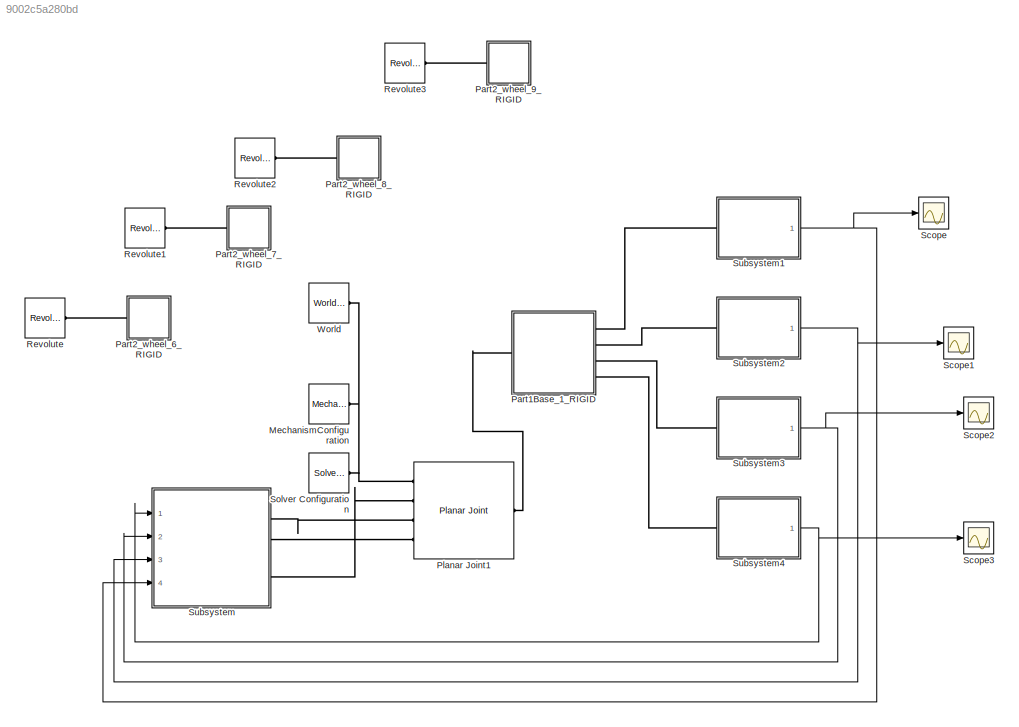
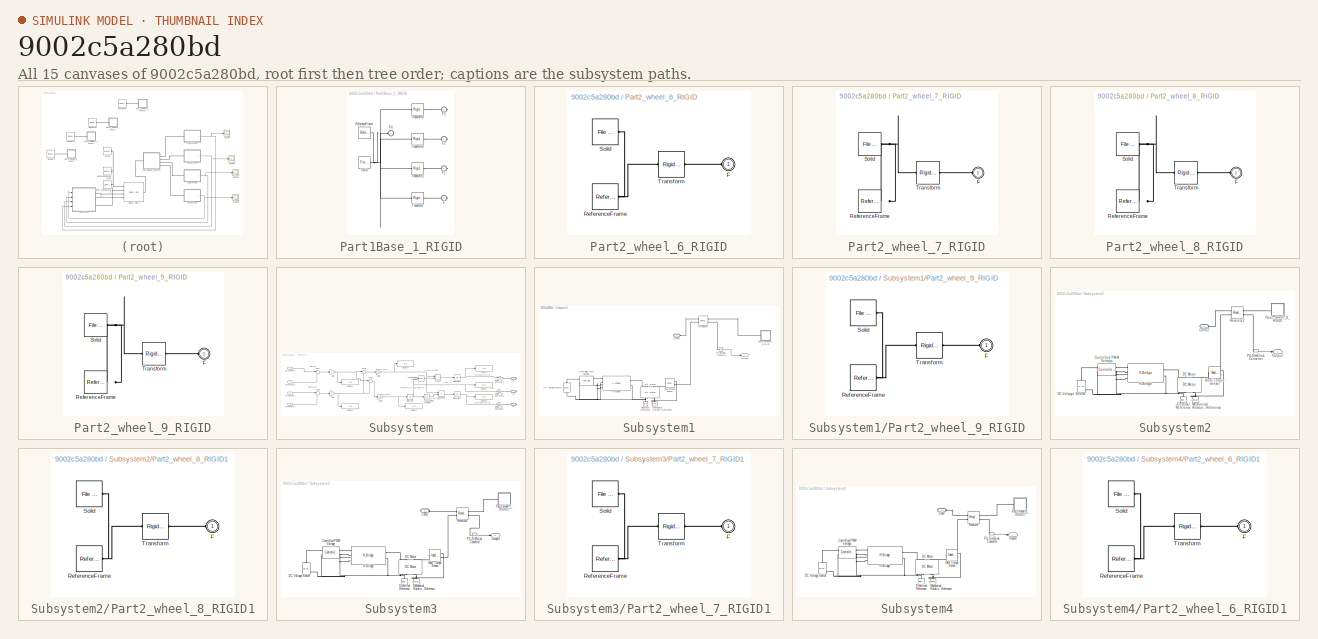
[diagram: thumbnail index - all 15 canvases of the model, root first then tree order]
MODEL slx_9002c5a280bd
KIND model
CONFIG AbsTol = auto
CONFIG EnableMultiTasking = off
CONFIG FixedStep = auto
CONFIG MaxStep = auto
CONFIG MinStep = auto
CONFIG RelTol = 1e-3
CONFIG SampleTimeConstraint = Unconstrained
CONFIG Solver = VariableStepAuto
CONFIG SolverName = VariableStepAuto
CONFIG StartTime = 0.0
CONFIG StopTime = 10.0
WORKSPACE source: external: MATLAB File  (data not in archive)
BLOCK [Reference] MechanismConfiguration  REF=sm_lib/Utilities/Mechanism
Configuration
  Ports = [0, 0, 0, 0, 0, 0, 1]
  SourceBlock = sm_lib/Utilities/Mechanism\nConfiguration
  SourceProductBaseCode = MS
  SourceProductName = Simscape Multibody
  SourceType = Mechanism\nConfiguration
BLOCK [SubSystem] Part1Base_1_RIGID
  Ports = [0, 0, 0, 0, 0, 1, 4]
  RequestExecContextInheritance = off
BLOCK [PMIOPort] Part1Base_1_RIGID/F
  Port = 5
  Side = Right
BLOCK [PMIOPort] Part1Base_1_RIGID/F1
  Port = 4
  Side = Right
BLOCK [PMIOPort] Part1Base_1_RIGID/F2
  Port = 3
  Side = Right
BLOCK [PMIOPort] Part1Base_1_RIGID/F3
  Port = 2
  Side = Right
BLOCK [PMIOPort] Part1Base_1_RIGID/F4
  Side = Left
BLOCK [Reference] Part1Base_1_RIGID/ReferenceFrame  REF=sm_lib/Frames and
Transforms/Reference
Frame
  Ports = [0, 0, 0, 0, 0, 0, 1]
  SourceBlock = sm_lib/Frames and\nTransforms/Reference\nFrame
  SourceProductBaseCode = MS
  SourceProductName = Simscape Multibody
  SourceType = Reference\nFrame
BLOCK [Reference] Part1Base_1_RIGID/Solid  REF=sm_lib/Body Elements/File Solid
  Ports = [0, 0, 0, 0, 0, 0, 1]
  SourceBlock = sm_lib/Body Elements/File Solid
  SourceProductBaseCode = MS
  SourceProductName = Simscape Multibody
  SourceType = File Solid
BLOCK [Reference] Part1Base_1_RIGID/Transform  REF=sm_lib/Frames and
Transforms/Rigid
Transform
  Ports = [0, 0, 0, 0, 0, 1, 1]
  SourceBlock = sm_lib/Frames and\nTransforms/Rigid\nTransform
  SourceProductBaseCode = MS
  SourceProductName = Simscape Multibody
  SourceType = Rigid\nTransform
BLOCK [Reference] Part1Base_1_RIGID/Transform1  REF=sm_lib/Frames and
Transforms/Rigid
Transform
  Ports = [0, 0, 0, 0, 0, 1, 1]
  SourceBlock = sm_lib/Frames and\nTransforms/Rigid\nTransform
  SourceProductBaseCode = MS
  SourceProductName = Simscape Multibody
  SourceType = Rigid\nTransform
BLOCK [Reference] Part1Base_1_RIGID/Transform2  REF=sm_lib/Frames and
Transforms/Rigid
Transform
  Ports = [0, 0, 0, 0, 0, 1, 1]
  SourceBlock = sm_lib/Frames and\nTransforms/Rigid\nTransform
  SourceProductBaseCode = MS
  SourceProductName = Simscape Multibody
  SourceType = Rigid\nTransform
BLOCK [Reference] Part1Base_1_RIGID/Transform3  REF=sm_lib/Frames and
Transforms/Rigid
Transform
  Ports = [0, 0, 0, 0, 0, 1, 1]
  SourceBlock = sm_lib/Frames and\nTransforms/Rigid\nTransform
  SourceProductBaseCode = MS
  SourceProductName = Simscape Multibody
  SourceType = Rigid\nTransform
BLOCK [SubSystem] Part2_wheel_6_RIGID
  Commented = on
  Ports = [0, 0, 0, 0, 0, 1]
  RequestExecContextInheritance = off
BLOCK [PMIOPort] Part2_wheel_6_RIGID/F
  Side = Left
BLOCK [Reference] Part2_wheel_6_RIGID/ReferenceFrame  REF=sm_lib/Frames and
Transforms/Reference
Frame
  Ports = [0, 0, 0, 0, 0, 0, 1]
  SourceBlock = sm_lib/Frames and\nTransforms/Reference\nFrame
  SourceProductBaseCode = MS
  SourceProductName = Simscape Multibody
  SourceType = Reference\nFrame
BLOCK [Reference] Part2_wheel_6_RIGID/Solid  REF=sm_lib/Body Elements/File Solid
  Ports = [0, 0, 0, 0, 0, 0, 1]
  SourceBlock = sm_lib/Body Elements/File Solid
  SourceProductBaseCode = MS
  SourceProductName = Simscape Multibody
  SourceType = File Solid
BLOCK [Reference] Part2_wheel_6_RIGID/Transform  REF=sm_lib/Frames and
Transforms/Rigid
Transform
  Ports = [0, 0, 0, 0, 0, 1, 1]
  SourceBlock = sm_lib/Frames and\nTransforms/Rigid\nTransform
  SourceProductBaseCode = MS
  SourceProductName = Simscape Multibody
  SourceType = Rigid\nTransform
BLOCK [SubSystem] Part2_wheel_7_RIGID
  Commented = on
  Ports = [0, 0, 0, 0, 0, 1]
  RequestExecContextInheritance = off
BLOCK [PMIOPort] Part2_wheel_7_RIGID/F
  Side = Left
BLOCK [Reference] Part2_wheel_7_RIGID/ReferenceFrame  REF=sm_lib/Frames and
Transforms/Reference
Frame
  Ports = [0, 0, 0, 0, 0, 0, 1]
  SourceBlock = sm_lib/Frames and\nTransforms/Reference\nFrame
  SourceProductBaseCode = MS
  SourceProductName = Simscape Multibody
  SourceType = Reference\nFrame
BLOCK [Reference] Part2_wheel_7_RIGID/Solid  REF=sm_lib/Body Elements/File Solid
  Ports = [0, 0, 0, 0, 0, 0, 1]
  SourceBlock = sm_lib/Body Elements/File Solid
  SourceProductBaseCode = MS
  SourceProductName = Simscape Multibody
  SourceType = File Solid
BLOCK [Reference] Part2_wheel_7_RIGID/Transform  REF=sm_lib/Frames and
Transforms/Rigid
Transform
  Ports = [0, 0, 0, 0, 0, 1, 1]
  SourceBlock = sm_lib/Frames and\nTransforms/Rigid\nTransform
  SourceProductBaseCode = MS
  SourceProductName = Simscape Multibody
  SourceType = Rigid\nTransform
BLOCK [SubSystem] Part2_wheel_8_RIGID
  Commented = on
  Ports = [0, 0, 0, 0, 0, 1]
  RequestExecContextInheritance = off
BLOCK [PMIOPort] Part2_wheel_8_RIGID/F
  Side = Left
BLOCK [Reference] Part2_wheel_8_RIGID/ReferenceFrame  REF=sm_lib/Frames and
Transforms/Reference
Frame
  Ports = [0, 0, 0, 0, 0, 0, 1]
  SourceBlock = sm_lib/Frames and\nTransforms/Reference\nFrame
  SourceProductBaseCode = MS
  SourceProductName = Simscape Multibody
  SourceType = Reference\nFrame
BLOCK [Reference] Part2_wheel_8_RIGID/Solid  REF=sm_lib/Body Elements/File Solid
  Ports = [0, 0, 0, 0, 0, 0, 1]
  SourceBlock = sm_lib/Body Elements/File Solid
  SourceProductBaseCode = MS
  SourceProductName = Simscape Multibody
  SourceType = File Solid
BLOCK [Reference] Part2_wheel_8_RIGID/Transform  REF=sm_lib/Frames and
Transforms/Rigid
Transform
  Ports = [0, 0, 0, 0, 0, 1, 1]
  SourceBlock = sm_lib/Frames and\nTransforms/Rigid\nTransform
  SourceProductBaseCode = MS
  SourceProductName = Simscape Multibody
  SourceType = Rigid\nTransform
BLOCK [SubSystem] Part2_wheel_9_RIGID
  Commented = on
  Ports = [0, 0, 0, 0, 0, 1]
  RequestExecContextInheritance = off
BLOCK [PMIOPort] Part2_wheel_9_RIGID/F
  Side = Left
BLOCK [Reference] Part2_wheel_9_RIGID/ReferenceFrame  REF=sm_lib/Frames and
Transforms/Reference
Frame
  Ports = [0, 0, 0, 0, 0, 0, 1]
  SourceBlock = sm_lib/Frames and\nTransforms/Reference\nFrame
  SourceProductBaseCode = MS
  SourceProductName = Simscape Multibody
  SourceType = Reference\nFrame
BLOCK [Reference] Part2_wheel_9_RIGID/Solid  REF=sm_lib/Body Elements/File Solid
  Ports = [0, 0, 0, 0, 0, 0, 1]
  SourceBlock = sm_lib/Body Elements/File Solid
  SourceProductBaseCode = MS
  SourceProductName = Simscape Multibody
  SourceType = File Solid
BLOCK [Reference] Part2_wheel_9_RIGID/Transform  REF=sm_lib/Frames and
Transforms/Rigid
Transform
  Ports = [0, 0, 0, 0, 0, 1, 1]
  SourceBlock = sm_lib/Frames and\nTransforms/Rigid\nTransform
  SourceProductBaseCode = MS
  SourceProductName = Simscape Multibody
  SourceType = Rigid\nTransform
BLOCK [Reference] Planar Joint1  REF=sm_lib/Joints/Planar Joint
  Ports = [0, 0, 0, 0, 0, 4, 1]
  SourceBlock = sm_lib/Joints/Planar Joint
  SourceProductBaseCode = MS
  SourceProductName = Simscape Multibody
  SourceType = Planar Joint
BLOCK [Reference] Revolute  REF=sm_lib/Joints/Revolute Joint
  Commented = on
  Ports = [0, 0, 0, 0, 0, 1, 1]
  SourceBlock = sm_lib/Joints/Revolute Joint
  SourceProductBaseCode = MS
  SourceProductName = Simscape Multibody
  SourceType = Revolute Joint
BLOCK [Reference] Revolute1  REF=sm_lib/Joints/Revolute Joint
  Commented = on
  Ports = [0, 0, 0, 0, 0, 1, 1]
  SourceBlock = sm_lib/Joints/Revolute Joint
  SourceProductBaseCode = MS
  SourceProductName = Simscape Multibody
  SourceType = Revolute Joint
BLOCK [Reference] Revolute2  REF=sm_lib/Joints/Revolute Joint
  Commented = on
  Ports = [0, 0, 0, 0, 0, 1, 1]
  SourceBlock = sm_lib/Joints/Revolute Joint
  SourceProductBaseCode = MS
  SourceProductName = Simscape Multibody
  SourceType = Revolute Joint
BLOCK [Reference] Revolute3  REF=sm_lib/Joints/Revolute Joint
  Commented = on
  Ports = [0, 0, 0, 0, 0, 1, 1]
  SourceBlock = sm_lib/Joints/Revolute Joint
  SourceProductBaseCode = MS
  SourceProductName = Simscape Multibody
  SourceType = Revolute Joint
BLOCK [Scope] Scope
  Floating = off
  NumInputPorts = 1
  Ports = [1]
  ScopeSpecificationString = Simulink.scopes.TimeScopeBlockCfg('CurrentConfiguration', extmgr.ConfigurationSet(extmgr.Configuration('Core','General UI',true),extmgr.Configuration('Core','Source UI',true),extmgr.Configuration('Sources','WiredSimulink',true,'DataLoggingSaveFormat','Array','DataLoggingLimitDataPoints',true,'DataLoggingDecimation','1'),extmgr.Configuration('Visuals','Time Domain',true,'SerializedDisplays',{struct...<+3718ch>
BLOCK [Scope] Scope1
  Floating = off
  NumInputPorts = 1
  Ports = [1]
  ScopeSpecificationString = Simulink.scopes.TimeScopeBlockCfg('CurrentConfiguration', extmgr.ConfigurationSet(extmgr.Configuration('Core','General UI',true),extmgr.Configuration('Core','Source UI',true),extmgr.Configuration('Sources','WiredSimulink',true,'DataLoggingVariableName','ScopeData1','DataLoggingSaveFormat','Array','DataLoggingLimitDataPoints',true,'DataLoggingDecimation','1'),extmgr.Configuration('Visuals','Time Do...<+868ch>
BLOCK [Scope] Scope2
  Floating = off
  NumInputPorts = 1
  Ports = [1]
  ScopeSpecificationString = Simulink.scopes.TimeScopeBlockCfg('CurrentConfiguration', extmgr.ConfigurationSet(extmgr.Configuration('Core','General UI',true),extmgr.Configuration('Core','Source UI',true),extmgr.Configuration('Sources','WiredSimulink',true,'DataLoggingVariableName','ScopeData2','DataLoggingSaveFormat','Array','DataLoggingLimitDataPoints',true,'DataLoggingDecimation','1'),extmgr.Configuration('Visuals','Time Do...<+868ch>
BLOCK [Scope] Scope3
  Floating = off
  NumInputPorts = 1
  Ports = [1]
  ScopeSpecificationString = Simulink.scopes.TimeScopeBlockCfg('CurrentConfiguration', extmgr.ConfigurationSet(extmgr.Configuration('Core','General UI',true),extmgr.Configuration('Core','Source UI',true),extmgr.Configuration('Sources','WiredSimulink',true,'DataLoggingVariableName','ScopeData3','DataLoggingSaveFormat','Array','DataLoggingLimitDataPoints',true,'DataLoggingDecimation','1'),extmgr.Configuration('Visuals','Time Do...<+1775ch>
BLOCK [Reference] Solver Configuration  REF=nesl_utility/Solver
Configuration
  Ports = [0, 0, 0, 0, 0, 0, 1]
  SourceBlock = nesl_utility/Solver\nConfiguration
  SourceProductBaseCode = SS
  SourceProductName = Simscape
  SourceType = Solver\nConfiguration
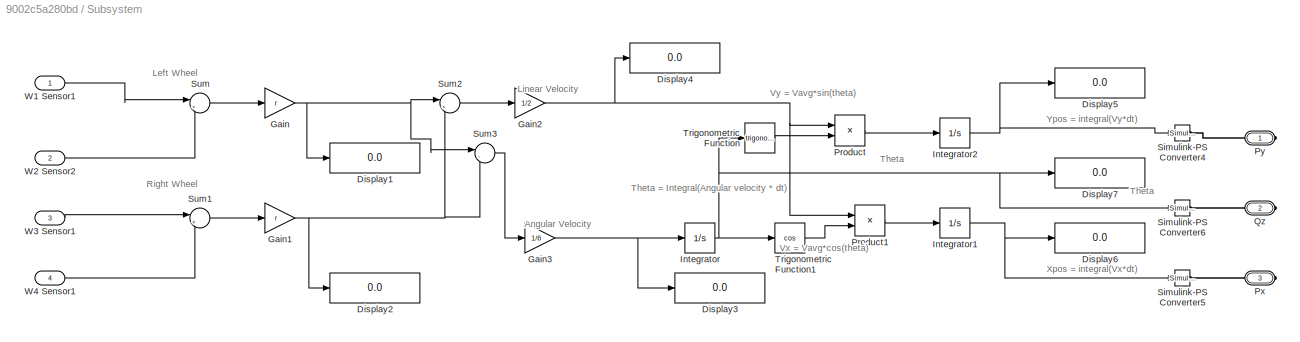
BLOCK [SubSystem] Subsystem
  Ports = [4, 0, 0, 0, 0, 0, 3]
  RequestExecContextInheritance = off
BLOCK [Display] Subsystem/Display1
  Decimation = 1
  Ports = [1]
BLOCK [Display] Subsystem/Display2
  Decimation = 1
  Ports = [1]
BLOCK [Display] Subsystem/Display3
  Decimation = 1
  Ports = [1]
BLOCK [Display] Subsystem/Display4
  Decimation = 1
  Ports = [1]
BLOCK [Display] Subsystem/Display5
  Decimation = 1
  Ports = [1]
BLOCK [Display] Subsystem/Display6
  Decimation = 1
  Ports = [1]
BLOCK [Display] Subsystem/Display7
  Decimation = 1
  Ports = [1]
BLOCK [Gain] Subsystem/Gain
  Gain = r
  OutDataTypeStr = Inherit: Inherit via internal rule
  ParamDataTypeStr = Inherit: Inherit via internal rule
  SaturateOnIntegerOverflow = off
BLOCK [Gain] Subsystem/Gain1
  Gain = r
  OutDataTypeStr = Inherit: Inherit via internal rule
  ParamDataTypeStr = Inherit: Inherit via internal rule
  SaturateOnIntegerOverflow = off
BLOCK [Gain] Subsystem/Gain2
  Gain = 1/2
  OutDataTypeStr = Inherit: Inherit via internal rule
  ParamDataTypeStr = Inherit: Inherit via internal rule
  SaturateOnIntegerOverflow = off
BLOCK [Gain] Subsystem/Gain3
  Gain = 1/6
  OutDataTypeStr = Inherit: Inherit via internal rule
  ParamDataTypeStr = Inherit: Inherit via internal rule
  SaturateOnIntegerOverflow = off
BLOCK [Integrator] Subsystem/Integrator
  Ports = [1, 1]
BLOCK [Integrator] Subsystem/Integrator1
  Ports = [1, 1]
BLOCK [Integrator] Subsystem/Integrator2
  Ports = [1, 1]
BLOCK [Product] Subsystem/Product
  InputSameDT = off
  OutDataTypeStr = Inherit: Inherit via internal rule
  Ports = [2, 1]
  RndMeth = Floor
  SaturateOnIntegerOverflow = off
BLOCK [Product] Subsystem/Product1
  InputSameDT = off
  OutDataTypeStr = Inherit: Inherit via internal rule
  Ports = [2, 1]
  RndMeth = Floor
  SaturateOnIntegerOverflow = off
BLOCK [PMIOPort] Subsystem/Px
  Port = 3
  Side = Right
BLOCK [PMIOPort] Subsystem/Py
  Side = Right
BLOCK [PMIOPort] Subsystem/Qz
  Port = 2
  Side = Right
BLOCK [Reference] Subsystem/Simulink-PS Converter4  REF=nesl_utility/Simulink-PS
Converter
  Ports = [1, 0, 0, 0, 0, 0, 1]
  SourceBlock = nesl_utility/Simulink-PS\nConverter
  SourceProductBaseCode = SS
  SourceProductName = Simscape
  SourceType = Simulink-PS\nConverter
BLOCK [Reference] Subsystem/Simulink-PS Converter5  REF=nesl_utility/Simulink-PS
Converter
  Ports = [1, 0, 0, 0, 0, 0, 1]
  SourceBlock = nesl_utility/Simulink-PS\nConverter
  SourceProductBaseCode = SS
  SourceProductName = Simscape
  SourceType = Simulink-PS\nConverter
BLOCK [Reference] Subsystem/Simulink-PS Converter6  REF=nesl_utility/Simulink-PS
Converter
  Ports = [1, 0, 0, 0, 0, 0, 1]
  SourceBlock = nesl_utility/Simulink-PS\nConverter
  SourceProductBaseCode = SS
  SourceProductName = Simscape
  SourceType = Simulink-PS\nConverter
BLOCK [Sum] Subsystem/Sum
  IconShape = round
  InputSameDT = off
  Inputs = |++
  OutDataTypeStr = Inherit: Inherit via internal rule
  Ports = [2, 1]
  SaturateOnIntegerOverflow = off
BLOCK [Sum] Subsystem/Sum1
  IconShape = round
  InputSameDT = off
  Inputs = |++
  OutDataTypeStr = Inherit: Inherit via internal rule
  Ports = [2, 1]
  SaturateOnIntegerOverflow = off
BLOCK [Sum] Subsystem/Sum2
  IconShape = round
  InputSameDT = off
  Inputs = |++
  OutDataTypeStr = Inherit: Inherit via internal rule
  Ports = [2, 1]
  SaturateOnIntegerOverflow = off
BLOCK [Sum] Subsystem/Sum3
  IconShape = round
  InputSameDT = off
  Inputs = |-+
  OutDataTypeStr = Inherit: Inherit via internal rule
  Ports = [2, 1]
  SaturateOnIntegerOverflow = off
BLOCK [Trigonometry] Subsystem/Trigonometric Function
  Ports = [1, 1]
BLOCK [Trigonometry] Subsystem/Trigonometric Function1
  Operator = cos
  Ports = [1, 1]
BLOCK [Inport] Subsystem/W1 Sensor1
  IconDisplay = Port number
BLOCK [Inport] Subsystem/W2 Sensor2
  IconDisplay = Port number
  Port = 2
BLOCK [Inport] Subsystem/W3 Sensor1
  IconDisplay = Port number
  Port = 3
BLOCK [Inport] Subsystem/W4 Sensor1
  IconDisplay = Port number
  Port = 4
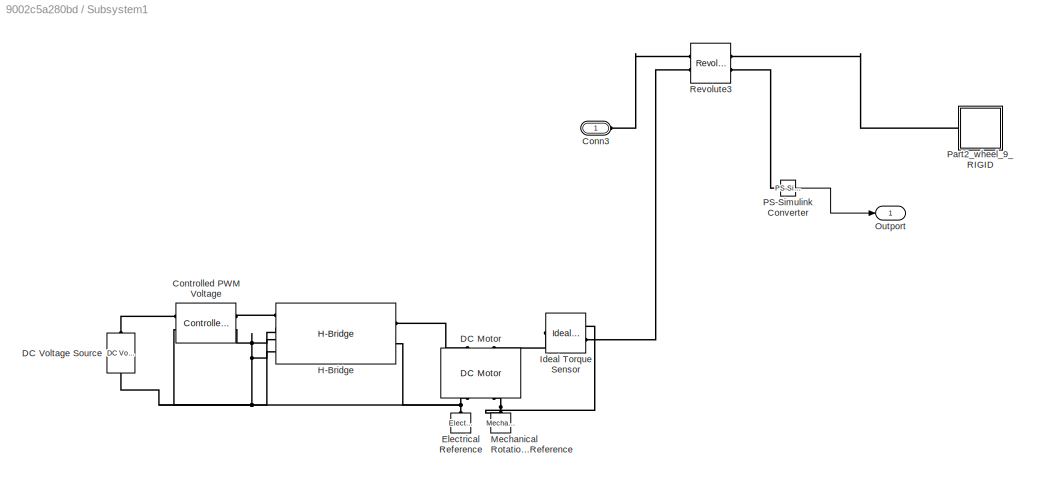
BLOCK [SubSystem] Subsystem1
  Ports = [0, 1, 0, 0, 0, 1]
  RequestExecContextInheritance = off
BLOCK [PMIOPort] Subsystem1/Conn3
  Side = Left
BLOCK [Reference] Subsystem1/Controlled PWM Voltage  REF=ee_lib/Integrated Circuits/Controlled PWM
Voltage
  Ports = [0, 0, 0, 0, 0, 2, 2]
  SourceBlock = ee_lib/Integrated Circuits/Controlled PWM\nVoltage
  SourceProductBaseCode = PS
  SourceProductName = Simscape Electrical
  SourceType = Controlled PWM\nVoltage
BLOCK [Reference] Subsystem1/DC Motor  REF=ee_lib/Electromechanical/Brushed Motors/DC Motor
  Ports = [0, 0, 0, 0, 0, 2, 2]
  SourceBlock = ee_lib/Electromechanical/Brushed Motors/DC Motor
  SourceProductBaseCode = PS
  SourceProductName = Simscape Electrical
  SourceType = DC Motor
BLOCK [Reference] Subsystem1/DC Voltage Source  REF=fl_lib/Electrical/Electrical Sources/DC Voltage Source
  Ports = [0, 0, 0, 0, 0, 1, 1]
  SourceBlock = fl_lib/Electrical/Electrical Sources/DC Voltage Source
  SourceProductBaseCode = SS
  SourceProductName = Simscape
  SourceType = DC Voltage Source
BLOCK [Reference] Subsystem1/Electrical Reference  REF=fl_lib/Electrical/Electrical Elements/Electrical Reference
  Ports = [0, 0, 0, 0, 0, 1]
  SourceBlock = fl_lib/Electrical/Electrical Elements/Electrical Reference
  SourceProductBaseCode = SS
  SourceProductName = Simscape
  SourceType = Electrical Reference
BLOCK [Reference] Subsystem1/H-Bridge  REF=ee_lib/Semiconductors &
Converters/Converters/H-Bridge
  Ports = [0, 0, 0, 0, 0, 4, 2]
  SourceBlock = ee_lib/Semiconductors &\nConverters/Converters/H-Bridge
  SourceProductBaseCode = PS
  SourceProductName = Simscape Electrical
  SourceType = H-Bridge
BLOCK [Reference] Subsystem1/Ideal Torque Sensor  REF=fl_lib/Mechanical/Mechanical Sensors/Ideal Torque Sensor
  Ports = [0, 0, 0, 0, 0, 1, 2]
  SourceBlock = fl_lib/Mechanical/Mechanical Sensors/Ideal Torque Sensor
  SourceProductBaseCode = SS
  SourceProductName = Simscape
  SourceType = Ideal Torque Sensor
BLOCK [Reference] Subsystem1/Mechanical Rotational Reference  REF=fl_lib/Mechanical/Rotational Elements/Mechanical
Rotational Reference
  Ports = [0, 0, 0, 0, 0, 1]
  SourceBlock = fl_lib/Mechanical/Rotational Elements/Mechanical\nRotational Reference
  SourceProductBaseCode = SS
  SourceProductName = Simscape
  SourceType = Mechanical\nRotational Reference
BLOCK [Outport] Subsystem1/Outport
  IconDisplay = Port number
BLOCK [Reference] Subsystem1/PS-Simulink Converter  REF=nesl_utility/PS-Simulink
Converter
  Ports = [0, 1, 0, 0, 0, 1]
  SourceBlock = nesl_utility/PS-Simulink\nConverter
  SourceProductBaseCode = SS
  SourceProductName = Simscape
  SourceType = PS-Simulink\nConverter
BLOCK [SubSystem] Subsystem1/Part2_wheel_9_RIGID
  Ports = [0, 0, 0, 0, 0, 1]
  RequestExecContextInheritance = off
BLOCK [PMIOPort] Subsystem1/Part2_wheel_9_RIGID/F
  Side = Left
BLOCK [Reference] Subsystem1/Part2_wheel_9_RIGID/ReferenceFrame  REF=sm_lib/Frames and
Transforms/Reference
Frame
  Ports = [0, 0, 0, 0, 0, 0, 1]
  SourceBlock = sm_lib/Frames and\nTransforms/Reference\nFrame
  SourceProductBaseCode = MS
  SourceProductName = Simscape Multibody
  SourceType = Reference\nFrame
BLOCK [Reference] Subsystem1/Part2_wheel_9_RIGID/Solid  REF=sm_lib/Body Elements/File Solid
  Ports = [0, 0, 0, 0, 0, 0, 1]
  SourceBlock = sm_lib/Body Elements/File Solid
  SourceProductBaseCode = MS
  SourceProductName = Simscape Multibody
  SourceType = File Solid
BLOCK [Reference] Subsystem1/Part2_wheel_9_RIGID/Transform  REF=sm_lib/Frames and
Transforms/Rigid
Transform
  Ports = [0, 0, 0, 0, 0, 1, 1]
  SourceBlock = sm_lib/Frames and\nTransforms/Rigid\nTransform
  SourceProductBaseCode = MS
  SourceProductName = Simscape Multibody
  SourceType = Rigid\nTransform
BLOCK [Reference] Subsystem1/Revolute3  REF=sm_lib/Joints/Revolute Joint
  Ports = [0, 0, 0, 0, 0, 2, 2]
  SourceBlock = sm_lib/Joints/Revolute Joint
  SourceProductBaseCode = MS
  SourceProductName = Simscape Multibody
  SourceType = Revolute Joint
BLOCK [SubSystem] Subsystem2
  Ports = [0, 1, 0, 0, 0, 1]
  RequestExecContextInheritance = off
BLOCK [PMIOPort] Subsystem2/Conn2
  Side = Left
BLOCK [Reference] Subsystem2/Controlled PWM Voltage  REF=ee_lib/Integrated Circuits/Controlled PWM
Voltage
  Ports = [0, 0, 0, 0, 0, 2, 2]
  SourceBlock = ee_lib/Integrated Circuits/Controlled PWM\nVoltage
  SourceProductBaseCode = PS
  SourceProductName = Simscape Electrical
  SourceType = Controlled PWM\nVoltage
BLOCK [Reference] Subsystem2/DC Motor  REF=ee_lib/Electromechanical/Brushed Motors/DC Motor
  Ports = [0, 0, 0, 0, 0, 2, 2]
  SourceBlock = ee_lib/Electromechanical/Brushed Motors/DC Motor
  SourceProductBaseCode = PS
  SourceProductName = Simscape Electrical
  SourceType = DC Motor
BLOCK [Reference] Subsystem2/DC Voltage Source  REF=fl_lib/Electrical/Electrical Sources/DC Voltage Source
  Ports = [0, 0, 0, 0, 0, 1, 1]
  SourceBlock = fl_lib/Electrical/Electrical Sources/DC Voltage Source
  SourceProductBaseCode = SS
  SourceProductName = Simscape
  SourceType = DC Voltage Source
BLOCK [Reference] Subsystem2/Electrical Reference  REF=fl_lib/Electrical/Electrical Elements/Electrical Reference
  Ports = [0, 0, 0, 0, 0, 1]
  SourceBlock = fl_lib/Electrical/Electrical Elements/Electrical Reference
  SourceProductBaseCode = SS
  SourceProductName = Simscape
  SourceType = Electrical Reference
BLOCK [Reference] Subsystem2/H-Bridge  REF=ee_lib/Semiconductors &
Converters/Converters/H-Bridge
  Ports = [0, 0, 0, 0, 0, 4, 2]
  SourceBlock = ee_lib/Semiconductors &\nConverters/Converters/H-Bridge
  SourceProductBaseCode = PS
  SourceProductName = Simscape Electrical
  SourceType = H-Bridge
BLOCK [Reference] Subsystem2/Ideal Torque Sensor  REF=fl_lib/Mechanical/Mechanical Sensors/Ideal Torque Sensor
  Ports = [0, 0, 0, 0, 0, 1, 2]
  SourceBlock = fl_lib/Mechanical/Mechanical Sensors/Ideal Torque Sensor
  SourceProductBaseCode = SS
  SourceProductName = Simscape
  SourceType = Ideal Torque Sensor
BLOCK [Reference] Subsystem2/Mechanical Rotational Reference  REF=fl_lib/Mechanical/Rotational Elements/Mechanical
Rotational Reference
  Ports = [0, 0, 0, 0, 0, 1]
  SourceBlock = fl_lib/Mechanical/Rotational Elements/Mechanical\nRotational Reference
  SourceProductBaseCode = SS
  SourceProductName = Simscape
  SourceType = Mechanical\nRotational Reference
BLOCK [Outport] Subsystem2/Outport
  IconDisplay = Port number
BLOCK [Reference] Subsystem2/PS-Simulink Converter  REF=nesl_utility/PS-Simulink
Converter
  Ports = [0, 1, 0, 0, 0, 1]
  SourceBlock = nesl_utility/PS-Simulink\nConverter
  SourceProductBaseCode = SS
  SourceProductName = Simscape
  SourceType = PS-Simulink\nConverter
BLOCK [SubSystem] Subsystem2/Part2_wheel_8_RIGID1
  Ports = [0, 0, 0, 0, 0, 1]
  RequestExecContextInheritance = off
BLOCK [PMIOPort] Subsystem2/Part2_wheel_8_RIGID1/F
  Side = Left
BLOCK [Reference] Subsystem2/Part2_wheel_8_RIGID1/ReferenceFrame  REF=sm_lib/Frames and
Transforms/Reference
Frame
  Ports = [0, 0, 0, 0, 0, 0, 1]
  SourceBlock = sm_lib/Frames and\nTransforms/Reference\nFrame
  SourceProductBaseCode = MS
  SourceProductName = Simscape Multibody
  SourceType = Reference\nFrame
BLOCK [Reference] Subsystem2/Part2_wheel_8_RIGID1/Solid  REF=sm_lib/Body Elements/File Solid
  Ports = [0, 0, 0, 0, 0, 0, 1]
  SourceBlock = sm_lib/Body Elements/File Solid
  SourceProductBaseCode = MS
  SourceProductName = Simscape Multibody
  SourceType = File Solid
BLOCK [Reference] Subsystem2/Part2_wheel_8_RIGID1/Transform  REF=sm_lib/Frames and
Transforms/Rigid
Transform
  Ports = [0, 0, 0, 0, 0, 1, 1]
  SourceBlock = sm_lib/Frames and\nTransforms/Rigid\nTransform
  SourceProductBaseCode = MS
  SourceProductName = Simscape Multibody
  SourceType = Rigid\nTransform
BLOCK [Reference] Subsystem2/Revolute2  REF=sm_lib/Joints/Revolute Joint
  Ports = [0, 0, 0, 0, 0, 2, 2]
  SourceBlock = sm_lib/Joints/Revolute Joint
  SourceProductBaseCode = MS
  SourceProductName = Simscape Multibody
  SourceType = Revolute Joint
BLOCK [SubSystem] Subsystem3
  Ports = [0, 1, 0, 0, 0, 1]
  RequestExecContextInheritance = off
BLOCK [PMIOPort] Subsystem3/Conn1
  Side = Left
BLOCK [Reference] Subsystem3/Controlled PWM Voltage  REF=ee_lib/Integrated Circuits/Controlled PWM
Voltage
  Ports = [0, 0, 0, 0, 0, 2, 2]
  SourceBlock = ee_lib/Integrated Circuits/Controlled PWM\nVoltage
  SourceProductBaseCode = PS
  SourceProductName = Simscape Electrical
  SourceType = Controlled PWM\nVoltage
BLOCK [Reference] Subsystem3/DC Motor  REF=ee_lib/Electromechanical/Brushed Motors/DC Motor
  Ports = [0, 0, 0, 0, 0, 2, 2]
  SourceBlock = ee_lib/Electromechanical/Brushed Motors/DC Motor
  SourceProductBaseCode = PS
  SourceProductName = Simscape Electrical
  SourceType = DC Motor
BLOCK [Reference] Subsystem3/DC Voltage Source  REF=fl_lib/Electrical/Electrical Sources/DC Voltage Source
  Ports = [0, 0, 0, 0, 0, 1, 1]
  SourceBlock = fl_lib/Electrical/Electrical Sources/DC Voltage Source
  SourceProductBaseCode = SS
  SourceProductName = Simscape
  SourceType = DC Voltage Source
BLOCK [Reference] Subsystem3/Electrical Reference  REF=fl_lib/Electrical/Electrical Elements/Electrical Reference
  Ports = [0, 0, 0, 0, 0, 1]
  SourceBlock = fl_lib/Electrical/Electrical Elements/Electrical Reference
  SourceProductBaseCode = SS
  SourceProductName = Simscape
  SourceType = Electrical Reference
BLOCK [Reference] Subsystem3/H-Bridge  REF=ee_lib/Semiconductors &
Converters/Converters/H-Bridge
  Ports = [0, 0, 0, 0, 0, 4, 2]
  SourceBlock = ee_lib/Semiconductors &\nConverters/Converters/H-Bridge
  SourceProductBaseCode = PS
  SourceProductName = Simscape Electrical
  SourceType = H-Bridge
BLOCK [Reference] Subsystem3/Ideal Torque Sensor  REF=fl_lib/Mechanical/Mechanical Sensors/Ideal Torque Sensor
  Ports = [0, 0, 0, 0, 0, 1, 2]
  SourceBlock = fl_lib/Mechanical/Mechanical Sensors/Ideal Torque Sensor
  SourceProductBaseCode = SS
  SourceProductName = Simscape
  SourceType = Ideal Torque Sensor
BLOCK [Reference] Subsystem3/Mechanical Rotational Reference  REF=fl_lib/Mechanical/Rotational Elements/Mechanical
Rotational Reference
  Ports = [0, 0, 0, 0, 0, 1]
  SourceBlock = fl_lib/Mechanical/Rotational Elements/Mechanical\nRotational Reference
  SourceProductBaseCode = SS
  SourceProductName = Simscape
  SourceType = Mechanical\nRotational Reference
BLOCK [Outport] Subsystem3/Outport
  IconDisplay = Port number
BLOCK [Reference] Subsystem3/PS-Simulink Converter  REF=nesl_utility/PS-Simulink
Converter
  Ports = [0, 1, 0, 0, 0, 1]
  SourceBlock = nesl_utility/PS-Simulink\nConverter
  SourceProductBaseCode = SS
  SourceProductName = Simscape
  SourceType = PS-Simulink\nConverter
BLOCK [SubSystem] Subsystem3/Part2_wheel_7_RIGID1
  Ports = [0, 0, 0, 0, 0, 1]
  RequestExecContextInheritance = off
BLOCK [PMIOPort] Subsystem3/Part2_wheel_7_RIGID1/F
  Side = Left
BLOCK [Reference] Subsystem3/Part2_wheel_7_RIGID1/ReferenceFrame  REF=sm_lib/Frames and
Transforms/Reference
Frame
  Ports = [0, 0, 0, 0, 0, 0, 1]
  SourceBlock = sm_lib/Frames and\nTransforms/Reference\nFrame
  SourceProductBaseCode = MS
  SourceProductName = Simscape Multibody
  SourceType = Reference\nFrame
BLOCK [Reference] Subsystem3/Part2_wheel_7_RIGID1/Solid  REF=sm_lib/Body Elements/File Solid
  Ports = [0, 0, 0, 0, 0, 0, 1]
  SourceBlock = sm_lib/Body Elements/File Solid
  SourceProductBaseCode = MS
  SourceProductName = Simscape Multibody
  SourceType = File Solid
BLOCK [Reference] Subsystem3/Part2_wheel_7_RIGID1/Transform  REF=sm_lib/Frames and
Transforms/Rigid
Transform
  Ports = [0, 0, 0, 0, 0, 1, 1]
  SourceBlock = sm_lib/Frames and\nTransforms/Rigid\nTransform
  SourceProductBaseCode = MS
  SourceProductName = Simscape Multibody
  SourceType = Rigid\nTransform
BLOCK [Reference] Subsystem3/Revolute1  REF=sm_lib/Joints/Revolute Joint
  Ports = [0, 0, 0, 0, 0, 2, 2]
  SourceBlock = sm_lib/Joints/Revolute Joint
  SourceProductBaseCode = MS
  SourceProductName = Simscape Multibody
  SourceType = Revolute Joint
BLOCK [SubSystem] Subsystem4
  Ports = [0, 1, 0, 0, 0, 1]
  RequestExecContextInheritance = off
BLOCK [PMIOPort] Subsystem4/Conn
  Side = Left
BLOCK [Reference] Subsystem4/Controlled PWM Voltage  REF=ee_lib/Integrated Circuits/Controlled PWM
Voltage
  Ports = [0, 0, 0, 0, 0, 2, 2]
  SourceBlock = ee_lib/Integrated Circuits/Controlled PWM\nVoltage
  SourceProductBaseCode = PS
  SourceProductName = Simscape Electrical
  SourceType = Controlled PWM\nVoltage
BLOCK [Reference] Subsystem4/DC Motor  REF=ee_lib/Electromechanical/Brushed Motors/DC Motor
  Ports = [0, 0, 0, 0, 0, 2, 2]
  SourceBlock = ee_lib/Electromechanical/Brushed Motors/DC Motor
  SourceProductBaseCode = PS
  SourceProductName = Simscape Electrical
  SourceType = DC Motor
BLOCK [Reference] Subsystem4/DC Voltage Source  REF=fl_lib/Electrical/Electrical Sources/DC Voltage Source
  Ports = [0, 0, 0, 0, 0, 1, 1]
  SourceBlock = fl_lib/Electrical/Electrical Sources/DC Voltage Source
  SourceProductBaseCode = SS
  SourceProductName = Simscape
  SourceType = DC Voltage Source
BLOCK [Reference] Subsystem4/Electrical Reference  REF=fl_lib/Electrical/Electrical Elements/Electrical Reference
  Ports = [0, 0, 0, 0, 0, 1]
  SourceBlock = fl_lib/Electrical/Electrical Elements/Electrical Reference
  SourceProductBaseCode = SS
  SourceProductName = Simscape
  SourceType = Electrical Reference
BLOCK [Reference] Subsystem4/H-Bridge  REF=ee_lib/Semiconductors &
Converters/Converters/H-Bridge
  Ports = [0, 0, 0, 0, 0, 4, 2]
  SourceBlock = ee_lib/Semiconductors &\nConverters/Converters/H-Bridge
  SourceProductBaseCode = PS
  SourceProductName = Simscape Electrical
  SourceType = H-Bridge
BLOCK [Reference] Subsystem4/Ideal Torque Sensor  REF=fl_lib/Mechanical/Mechanical Sensors/Ideal Torque Sensor
  Ports = [0, 0, 0, 0, 0, 1, 2]
  SourceBlock = fl_lib/Mechanical/Mechanical Sensors/Ideal Torque Sensor
  SourceProductBaseCode = SS
  SourceProductName = Simscape
  SourceType = Ideal Torque Sensor
BLOCK [Reference] Subsystem4/Mechanical Rotational Reference  REF=fl_lib/Mechanical/Rotational Elements/Mechanical
Rotational Reference
  Ports = [0, 0, 0, 0, 0, 1]
  SourceBlock = fl_lib/Mechanical/Rotational Elements/Mechanical\nRotational Reference
  SourceProductBaseCode = SS
  SourceProductName = Simscape
  SourceType = Mechanical\nRotational Reference
BLOCK [Outport] Subsystem4/Outport
  IconDisplay = Port number
BLOCK [Reference] Subsystem4/PS-Simulink Converter  REF=nesl_utility/PS-Simulink
Converter
  Ports = [0, 1, 0, 0, 0, 1]
  SourceBlock = nesl_utility/PS-Simulink\nConverter
  SourceProductBaseCode = SS
  SourceProductName = Simscape
  SourceType = PS-Simulink\nConverter
BLOCK [SubSystem] Subsystem4/Part2_wheel_6_RIGID1
  Ports = [0, 0, 0, 0, 0, 1]
  RequestExecContextInheritance = off
BLOCK [PMIOPort] Subsystem4/Part2_wheel_6_RIGID1/F
  Side = Left
BLOCK [Reference] Subsystem4/Part2_wheel_6_RIGID1/ReferenceFrame  REF=sm_lib/Frames and
Transforms/Reference
Frame
  Ports = [0, 0, 0, 0, 0, 0, 1]
  SourceBlock = sm_lib/Frames and\nTransforms/Reference\nFrame
  SourceProductBaseCode = MS
  SourceProductName = Simscape Multibody
  SourceType = Reference\nFrame
BLOCK [Reference] Subsystem4/Part2_wheel_6_RIGID1/Solid  REF=sm_lib/Body Elements/File Solid
  Ports = [0, 0, 0, 0, 0, 0, 1]
  SourceBlock = sm_lib/Body Elements/File Solid
  SourceProductBaseCode = MS
  SourceProductName = Simscape Multibody
  SourceType = File Solid
BLOCK [Reference] Subsystem4/Part2_wheel_6_RIGID1/Transform  REF=sm_lib/Frames and
Transforms/Rigid
Transform
  Ports = [0, 0, 0, 0, 0, 1, 1]
  SourceBlock = sm_lib/Frames and\nTransforms/Rigid\nTransform
  SourceProductBaseCode = MS
  SourceProductName = Simscape Multibody
  SourceType = Rigid\nTransform
BLOCK [Reference] Subsystem4/Revolute  REF=sm_lib/Joints/Revolute Joint
  Ports = [0, 0, 0, 0, 0, 2, 2]
  SourceBlock = sm_lib/Joints/Revolute Joint
  SourceProductBaseCode = MS
  SourceProductName = Simscape Multibody
  SourceType = Revolute Joint
BLOCK [Reference] World  REF=sm_lib/Frames and
Transforms/World Frame
  Ports = [0, 0, 0, 0, 0, 0, 1]
  SourceBlock = sm_lib/Frames and\nTransforms/World Frame
  SourceProductBaseCode = MS
  SourceProductName = Simscape Multibody
  SourceType = World Frame
ANNOTATION Subsystem: Angular Velocity
ANNOTATION Subsystem: Left Wheel
ANNOTATION Subsystem: Linear Velocity
ANNOTATION Subsystem: Right Wheel
ANNOTATION Subsystem: Theta
ANNOTATION Subsystem: Theta = Integral(Angular velocity * dt)
ANNOTATION Subsystem: Vx = Vavg*cos(theta)
ANNOTATION Subsystem: Vy = Vavg*sin(theta)
ANNOTATION Subsystem: Xpos = integral(Vx*dt)
ANNOTATION Subsystem: Ypos = integral(Vy*dt)
NET Subsystem/Gain1:1 -> Subsystem/Display2:1, Subsystem/Sum2:2, Subsystem/Sum3:2
NET Subsystem/Gain2:1 -> Subsystem/Display4:1, Subsystem/Product1:1, Subsystem/Product:1
NET Subsystem/Gain3:1 -> Subsystem/Display3:1, Subsystem/Integrator:1
NET Subsystem/Gain:1 -> Subsystem/Display1:1, Subsystem/Sum2:1, Subsystem/Sum3:1
NET Subsystem/Integrator1:1 -> Subsystem/Display6:1, Subsystem/Simulink-PS Converter5:1
NET Subsystem/Integrator2:1 -> Subsystem/Display5:1, Subsystem/Simulink-PS Converter4:1
NET Subsystem/Integrator:1 -> Subsystem/Display7:1, Subsystem/Simulink-PS Converter6:1, Subsystem/Trigonometric Function1:1, Subsystem/Trigonometric Function:1
LINE Subsystem/Product1:1 -> Subsystem/Integrator1:1
LINE Subsystem/Product:1 -> Subsystem/Integrator2:1
LINE Subsystem/Sum1:1 -> Subsystem/Gain1:1
LINE Subsystem/Sum2:1 -> Subsystem/Gain2:1
LINE Subsystem/Sum3:1 -> Subsystem/Gain3:1
LINE Subsystem/Sum:1 -> Subsystem/Gain:1
LINE Subsystem/Trigonometric Function1:1 -> Subsystem/Product1:2
LINE Subsystem/Trigonometric Function:1 -> Subsystem/Product:2
LINE Subsystem/W1 Sensor1:1 -> Subsystem/Sum:1
LINE Subsystem/W2 Sensor2:1 -> Subsystem/Sum:2
LINE Subsystem/W3 Sensor1:1 -> Subsystem/Sum1:1
LINE Subsystem/W4 Sensor1:1 -> Subsystem/Sum1:2
LINE Subsystem1/PS-Simulink Converter:1 -> Subsystem1/Outport:1
NET Subsystem1:1 -> Scope:1, Subsystem:4
LINE Subsystem2/PS-Simulink Converter:1 -> Subsystem2/Outport:1
NET Subsystem2:1 -> Scope1:1, Subsystem:3
LINE Subsystem3/PS-Simulink Converter:1 -> Subsystem3/Outport:1
NET Subsystem3:1 -> Scope2:1, Subsystem:2
LINE Subsystem4/PS-Simulink Converter:1 -> Subsystem4/Outport:1
NET Subsystem4:1 -> Scope3:1, Subsystem:1
PNET net1: MechanismConfiguration:RConn1 -- Planar Joint1:LConn1 -- Solver Configuration:RConn1 -- World:RConn1
PLINE Part1Base_1_RIGID/F1:RConn1 -- Part1Base_1_RIGID/Transform1:RConn1
PLINE Part1Base_1_RIGID/F2:RConn1 -- Part1Base_1_RIGID/Transform2:RConn1
PLINE Part1Base_1_RIGID/F3:RConn1 -- Part1Base_1_RIGID/Transform3:RConn1
PNET net2: Part1Base_1_RIGID/F4:RConn1 -- Part1Base_1_RIGID/ReferenceFrame:RConn1 -- Part1Base_1_RIGID/Solid:RConn1 -- Part1Base_1_RIGID/Transform1:LConn1 -- Part1Base_1_RIGID/Transform2:LConn1 -- Part1Base_1_RIGID/Transform3:LConn1 -- Part1Base_1_RIGID/Transform:LConn1
PLINE Part1Base_1_RIGID/F:RConn1 -- Part1Base_1_RIGID/Transform:RConn1
PLINE Part1Base_1_RIGID:LConn1 -- Planar Joint1:RConn1
PLINE Part1Base_1_RIGID:RConn1 -- Subsystem1:LConn1
PLINE Part1Base_1_RIGID:RConn2 -- Subsystem2:LConn1
PLINE Part1Base_1_RIGID:RConn3 -- Subsystem3:LConn1
PLINE Part1Base_1_RIGID:RConn4 -- Subsystem4:LConn1
PLINE Part2_wheel_6_RIGID/F:RConn1 -- Part2_wheel_6_RIGID/Transform:RConn1
PNET net3: Part2_wheel_6_RIGID/ReferenceFrame:RConn1 -- Part2_wheel_6_RIGID/Solid:RConn1 -- Part2_wheel_6_RIGID/Transform:LConn1
PLINE Part2_wheel_6_RIGID:LConn1 -- Revolute:RConn1
PLINE Part2_wheel_7_RIGID/F:RConn1 -- Part2_wheel_7_RIGID/Transform:RConn1
PNET net4: Part2_wheel_7_RIGID/ReferenceFrame:RConn1 -- Part2_wheel_7_RIGID/Solid:RConn1 -- Part2_wheel_7_RIGID/Transform:LConn1
PLINE Part2_wheel_7_RIGID:LConn1 -- Revolute1:RConn1
PLINE Part2_wheel_8_RIGID/F:RConn1 -- Part2_wheel_8_RIGID/Transform:RConn1
PNET net5: Part2_wheel_8_RIGID/ReferenceFrame:RConn1 -- Part2_wheel_8_RIGID/Solid:RConn1 -- Part2_wheel_8_RIGID/Transform:LConn1
PLINE Part2_wheel_8_RIGID:LConn1 -- Revolute2:RConn1
PLINE Part2_wheel_9_RIGID/F:RConn1 -- Part2_wheel_9_RIGID/Transform:RConn1
PNET net6: Part2_wheel_9_RIGID/ReferenceFrame:RConn1 -- Part2_wheel_9_RIGID/Solid:RConn1 -- Part2_wheel_9_RIGID/Transform:LConn1
PLINE Part2_wheel_9_RIGID:LConn1 -- Revolute3:RConn1
PLINE Planar Joint1:LConn2 -- Subsystem:RConn3
PLINE Planar Joint1:LConn3 -- Subsystem:RConn1
PLINE Planar Joint1:LConn4 -- Subsystem:RConn2
PLINE Subsystem/Px:RConn1 -- Subsystem/Simulink-PS Converter5:RConn1
PLINE Subsystem/Py:RConn1 -- Subsystem/Simulink-PS Converter4:RConn1
PLINE Subsystem/Qz:RConn1 -- Subsystem/Simulink-PS Converter6:RConn1
PLINE Subsystem1/Conn3:RConn1 -- Subsystem1/Revolute3:LConn1
PLINE Subsystem1/Controlled PWM Voltage:LConn1 -- Subsystem1/DC Voltage Source:LConn1
PNET net7: Subsystem1/Controlled PWM Voltage:LConn2 -- Subsystem1/Controlled PWM Voltage:RConn2 -- Subsystem1/DC Motor:RConn1 -- Subsystem1/DC Voltage Source:RConn1 -- Subsystem1/Electrical Reference:LConn1 -- Subsystem1/H-Bridge:LConn2 -- Subsystem1/H-Bridge:LConn3 -- Subsystem1/H-Bridge:LConn4 -- Subsystem1/H-Bridge:RConn2
PLINE Subsystem1/Controlled PWM Voltage:RConn1 -- Subsystem1/H-Bridge:LConn1
PLINE Subsystem1/DC Motor:LConn1 -- Subsystem1/H-Bridge:RConn1
PLINE Subsystem1/DC Motor:LConn2 -- Subsystem1/Ideal Torque Sensor:LConn1
PNET net8: Subsystem1/DC Motor:RConn2 -- Subsystem1/Ideal Torque Sensor:RConn1 -- Subsystem1/Mechanical Rotational Reference:LConn1
PLINE Subsystem1/Ideal Torque Sensor:RConn2 -- Subsystem1/Revolute3:LConn2
PLINE Subsystem1/PS-Simulink Converter:LConn1 -- Subsystem1/Revolute3:RConn2
PLINE Subsystem1/Part2_wheel_9_RIGID/F:RConn1 -- Subsystem1/Part2_wheel_9_RIGID/Transform:RConn1
PNET net9: Subsystem1/Part2_wheel_9_RIGID/ReferenceFrame:RConn1 -- Subsystem1/Part2_wheel_9_RIGID/Solid:RConn1 -- Subsystem1/Part2_wheel_9_RIGID/Transform:LConn1
PLINE Subsystem1/Part2_wheel_9_RIGID:LConn1 -- Subsystem1/Revolute3:RConn1
PLINE Subsystem2/Conn2:RConn1 -- Subsystem2/Revolute2:LConn1
PLINE Subsystem2/Controlled PWM Voltage:LConn1 -- Subsystem2/DC Voltage Source:LConn1
PNET net10: Subsystem2/Controlled PWM Voltage:LConn2 -- Subsystem2/Controlled PWM Voltage:RConn2 -- Subsystem2/DC Motor:RConn1 -- Subsystem2/DC Voltage Source:RConn1 -- Subsystem2/Electrical Reference:LConn1 -- Subsystem2/H-Bridge:LConn2 -- Subsystem2/H-Bridge:LConn3 -- Subsystem2/H-Bridge:LConn4 -- Subsystem2/H-Bridge:RConn2
PLINE Subsystem2/Controlled PWM Voltage:RConn1 -- Subsystem2/H-Bridge:LConn1
PLINE Subsystem2/DC Motor:LConn1 -- Subsystem2/H-Bridge:RConn1
PLINE Subsystem2/DC Motor:LConn2 -- Subsystem2/Ideal Torque Sensor:LConn1
PNET net11: Subsystem2/DC Motor:RConn2 -- Subsystem2/Ideal Torque Sensor:RConn1 -- Subsystem2/Mechanical Rotational Reference:LConn1
PLINE Subsystem2/Ideal Torque Sensor:RConn2 -- Subsystem2/Revolute2:LConn2
PLINE Subsystem2/PS-Simulink Converter:LConn1 -- Subsystem2/Revolute2:RConn2
PLINE Subsystem2/Part2_wheel_8_RIGID1/F:RConn1 -- Subsystem2/Part2_wheel_8_RIGID1/Transform:RConn1
PNET net12: Subsystem2/Part2_wheel_8_RIGID1/ReferenceFrame:RConn1 -- Subsystem2/Part2_wheel_8_RIGID1/Solid:RConn1 -- Subsystem2/Part2_wheel_8_RIGID1/Transform:LConn1
PLINE Subsystem2/Part2_wheel_8_RIGID1:LConn1 -- Subsystem2/Revolute2:RConn1
PLINE Subsystem3/Conn1:RConn1 -- Subsystem3/Revolute1:LConn1
PLINE Subsystem3/Controlled PWM Voltage:LConn1 -- Subsystem3/DC Voltage Source:LConn1
PNET net13: Subsystem3/Controlled PWM Voltage:LConn2 -- Subsystem3/Controlled PWM Voltage:RConn2 -- Subsystem3/DC Motor:RConn1 -- Subsystem3/DC Voltage Source:RConn1 -- Subsystem3/Electrical Reference:LConn1 -- Subsystem3/H-Bridge:LConn2 -- Subsystem3/H-Bridge:LConn3 -- Subsystem3/H-Bridge:LConn4 -- Subsystem3/H-Bridge:RConn2
PLINE Subsystem3/Controlled PWM Voltage:RConn1 -- Subsystem3/H-Bridge:LConn1
PLINE Subsystem3/DC Motor:LConn1 -- Subsystem3/H-Bridge:RConn1
PLINE Subsystem3/DC Motor:LConn2 -- Subsystem3/Ideal Torque Sensor:LConn1
PNET net14: Subsystem3/DC Motor:RConn2 -- Subsystem3/Ideal Torque Sensor:RConn1 -- Subsystem3/Mechanical Rotational Reference:LConn1
PLINE Subsystem3/Ideal Torque Sensor:RConn2 -- Subsystem3/Revolute1:LConn2
PLINE Subsystem3/PS-Simulink Converter:LConn1 -- Subsystem3/Revolute1:RConn2
PLINE Subsystem3/Part2_wheel_7_RIGID1/F:RConn1 -- Subsystem3/Part2_wheel_7_RIGID1/Transform:RConn1
PNET net15: Subsystem3/Part2_wheel_7_RIGID1/ReferenceFrame:RConn1 -- Subsystem3/Part2_wheel_7_RIGID1/Solid:RConn1 -- Subsystem3/Part2_wheel_7_RIGID1/Transform:LConn1
PLINE Subsystem3/Part2_wheel_7_RIGID1:LConn1 -- Subsystem3/Revolute1:RConn1
PLINE Subsystem4/Conn:RConn1 -- Subsystem4/Revolute:LConn1
PLINE Subsystem4/Controlled PWM Voltage:LConn1 -- Subsystem4/DC Voltage Source:LConn1
PNET net16: Subsystem4/Controlled PWM Voltage:LConn2 -- Subsystem4/Controlled PWM Voltage:RConn2 -- Subsystem4/DC Motor:RConn1 -- Subsystem4/DC Voltage Source:RConn1 -- Subsystem4/Electrical Reference:LConn1 -- Subsystem4/H-Bridge:LConn2 -- Subsystem4/H-Bridge:LConn3 -- Subsystem4/H-Bridge:LConn4 -- Subsystem4/H-Bridge:RConn2
PLINE Subsystem4/Controlled PWM Voltage:RConn1 -- Subsystem4/H-Bridge:LConn1
PLINE Subsystem4/DC Motor:LConn1 -- Subsystem4/H-Bridge:RConn1
PLINE Subsystem4/DC Motor:LConn2 -- Subsystem4/Ideal Torque Sensor:LConn1
PNET net17: Subsystem4/DC Motor:RConn2 -- Subsystem4/Ideal Torque Sensor:RConn1 -- Subsystem4/Mechanical Rotational Reference:LConn1
PLINE Subsystem4/Ideal Torque Sensor:RConn2 -- Subsystem4/Revolute:LConn2
PLINE Subsystem4/PS-Simulink Converter:LConn1 -- Subsystem4/Revolute:RConn2
PLINE Subsystem4/Part2_wheel_6_RIGID1/F:RConn1 -- Subsystem4/Part2_wheel_6_RIGID1/Transform:RConn1
PNET net18: Subsystem4/Part2_wheel_6_RIGID1/ReferenceFrame:RConn1 -- Subsystem4/Part2_wheel_6_RIGID1/Solid:RConn1 -- Subsystem4/Part2_wheel_6_RIGID1/Transform:LConn1
PLINE Subsystem4/Part2_wheel_6_RIGID1:LConn1 -- Subsystem4/Revolute:RConn1
note: NET lines group one-source signal fan-out (src -> all destinations, sorted); 1:1 wires keep LINE; PNET lines group multi-terminal physical nets as a canonical sorted terminal list (undirected conserving connections); 2-terminal nets keep the pairwise PLINE form
